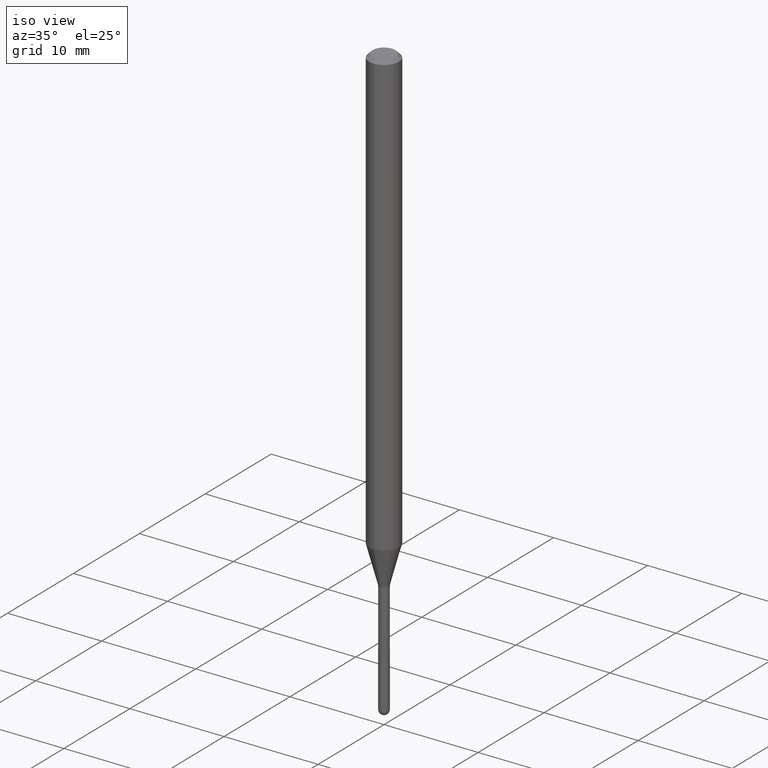
[diagram: clean part render]
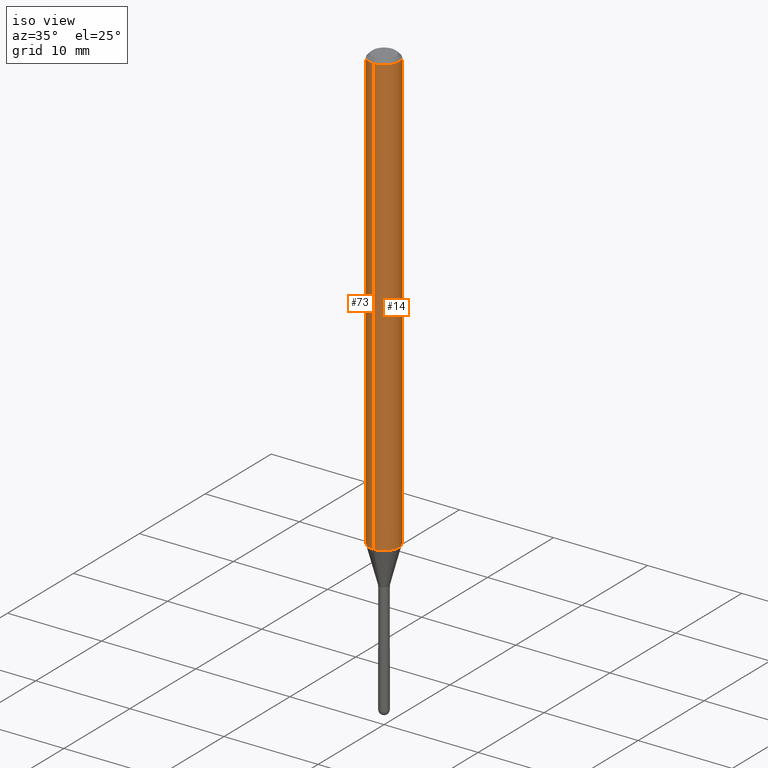
[diagram: same view with one multi-face feature highlighted, each face labeled with its STEP entity id]
A machine part, iso view. The highlighted faces form ONE feature: a constant-radius fillet chain: 2 tangent blend faces with common blend radius 1.5875 mm. The faces share edges in the B-rep.
Their STEP definitions:
[1] entity #14 (Cylinder):
#5 = DIRECTION ( 'NONE',  ( -2.445521062441042813E-29, 3.491406504910446446E-15, 1.000000000000000000 ) ) ;
#7 = DIRECTION ( 'NONE',  ( -6.982962677686265922E-15, -1.000000000000000000, 3.491406504910446446E-15 ) ) ;
#8 = CIRCLE ( 'NONE', #461, 0.06250000000000000000 ) ;
#14 = ADVANCED_FACE ( 'NONE', ( #347 ), #344, .T. ) ;
#37 = DIRECTION ( 'NONE',  ( -2.445521062441042813E-29, 3.491406504910446446E-15, 1.000000000000000000 ) ) ;
#47 = CARTESIAN_POINT ( 'NONE',  ( 3.668281593661566673E-31, -5.237109757365672602E-17, -0.01500000000000000812 ) ) ;
#60 = EDGE_CURVE ( 'NONE', #339, #284, #384, .T. ) ;
#79 = CARTESIAN_POINT ( 'NONE',  ( 4.440892098500625669E-16, 0.06250000000000000000, -2.182129065569029028E-16 ) ) ;
#93 = EDGE_CURVE ( 'NONE', #469, #468, #312, .T. ) ;
#97 = DIRECTION ( 'NONE',  ( -6.982962677686265922E-15, -1.000000000000000000, 3.483106191921935554E-15 ) ) ;
#139 = CARTESIAN_POINT ( 'NONE',  ( 4.527607959126081686E-29, -6.463947550056403649E-15, -1.851387840678323293 ) ) ;
#145 = DIRECTION ( 'NONE',  ( -6.982962677686265922E-15, -1.000000000000000000, 4.370956789862821150E-15 ) ) ;
#146 = ORIENTED_EDGE ( 'NONE', *, *, #509, .F. ) ;
#150 = VECTOR ( 'NONE', #5, 39.37007874015748143 ) ;
#214 = DIRECTION ( 'NONE',  ( -2.445521062441042813E-29, 3.491406504910446446E-15, 1.000000000000000000 ) ) ;
#219 = CIRCLE ( 'NONE', #269, 0.06250000000000000000 ) ;
#222 = DIRECTION ( 'NONE',  ( -2.445521062441042813E-29, 3.491406504910446446E-15, 1.000000000000000000 ) ) ;
#226 = EDGE_LOOP ( 'NONE', ( #302, #381, #146, #419 ) ) ;
#234 = DIRECTION ( 'NONE',  ( -2.445521062441042813E-29, 3.491406504910446446E-15, 1.000000000000000000 ) ) ;
#248 = CARTESIAN_POINT ( 'NONE',  ( 4.440892098501075812E-16, 0.06249999999999351907, -1.851387840678323737 ) ) ;
#258 = CARTESIAN_POINT ( 'NONE',  ( -4.364351673553912750E-16, -0.06250000000000005551, -0.01499999999999979128 ) ) ;
#269 = AXIS2_PLACEMENT_3D ( 'NONE', #139, #222, #145 ) ;
#284 = VERTEX_POINT ( 'NONE', #395 ) ;
#296 = AXIS2_PLACEMENT_3D ( 'NONE', #440, #234, #7 ) ;
#302 = ORIENTED_EDGE ( 'NONE', *, *, #433, .T. ) ;
#312 = LINE ( 'NONE', #355, #150 ) ;
#339 = VERTEX_POINT ( 'NONE', #248 ) ;
#344 = CYLINDRICAL_SURFACE ( 'NONE', #296, 0.06250000000000000000 ) ;
#347 = FACE_OUTER_BOUND ( 'NONE', #226, .T. ) ;
#355 = CARTESIAN_POINT ( 'NONE',  ( -4.364351673553916201E-16, -0.06250000000000000000, 2.182129065569029028E-16 ) ) ;
#367 = VECTOR ( 'NONE', #37, 39.37007874015748143 ) ;
#381 = ORIENTED_EDGE ( 'NONE', *, *, #60, .T. ) ;
#384 = LINE ( 'NONE', #79, #367 ) ;
#395 = CARTESIAN_POINT ( 'NONE',  ( 4.440892098501081729E-16, 0.06249999999999995143, -0.01500000000000022669 ) ) ;
#419 = ORIENTED_EDGE ( 'NONE', *, *, #93, .F. ) ;
#433 = EDGE_CURVE ( 'NONE', #469, #339, #219, .T. ) ;
#440 = CARTESIAN_POINT ( 'NONE',  ( 0.000000000000000000, 0.000000000000000000, 0.000000000000000000 ) ) ;
#461 = AXIS2_PLACEMENT_3D ( 'NONE', #47, #214, #97 ) ;
#468 = VERTEX_POINT ( 'NONE', #258 ) ;
#469 = VERTEX_POINT ( 'NONE', #492 ) ;
#492 = CARTESIAN_POINT ( 'NONE',  ( -4.364351673553464085E-16, -0.06250000000000648093, -1.851387840678323071 ) ) ;
#509 = EDGE_CURVE ( 'NONE', #468, #284, #8, .T. ) ;
[2] entity #73 (Cylinder):
#5 = DIRECTION ( 'NONE',  ( -2.445521062441042813E-29, 3.491406504910446446E-15, 1.000000000000000000 ) ) ;
#25 = EDGE_LOOP ( 'NONE', ( #69, #163, #152, #186 ) ) ;
#30 = CARTESIAN_POINT ( 'NONE',  ( 0.000000000000000000, 0.000000000000000000, 0.000000000000000000 ) ) ;
#37 = DIRECTION ( 'NONE',  ( -2.445521062441042813E-29, 3.491406504910446446E-15, 1.000000000000000000 ) ) ;
#51 = DIRECTION ( 'NONE',  ( -2.445521062441042813E-29, 3.491406504910446446E-15, 1.000000000000000000 ) ) ;
#60 = EDGE_CURVE ( 'NONE', #339, #284, #384, .T. ) ;
#69 = ORIENTED_EDGE ( 'NONE', *, *, #60, .F. ) ;
#73 = ADVANCED_FACE ( 'NONE', ( #74 ), #270, .T. ) ;
#74 = FACE_OUTER_BOUND ( 'NONE', #25, .T. ) ;
#79 = CARTESIAN_POINT ( 'NONE',  ( 4.440892098500625669E-16, 0.06250000000000000000, -2.182129065569029028E-16 ) ) ;
#93 = EDGE_CURVE ( 'NONE', #469, #468, #312, .T. ) ;
#103 = EDGE_CURVE ( 'NONE', #339, #469, #237, .T. ) ;
#137 = AXIS2_PLACEMENT_3D ( 'NONE', #206, #240, #345 ) ;
#150 = VECTOR ( 'NONE', #5, 39.37007874015748143 ) ;
#152 = ORIENTED_EDGE ( 'NONE', *, *, #93, .T. ) ;
#163 = ORIENTED_EDGE ( 'NONE', *, *, #103, .T. ) ;
#176 = DIRECTION ( 'NONE',  ( -6.982962677686265922E-15, -1.000000000000000000, 4.370956789862821150E-15 ) ) ;
#186 = ORIENTED_EDGE ( 'NONE', *, *, #285, .F. ) ;
#190 = CIRCLE ( 'NONE', #137, 0.06250000000000000000 ) ;
#206 = CARTESIAN_POINT ( 'NONE',  ( 3.668281593661566673E-31, -5.237109757365672602E-17, -0.01500000000000000812 ) ) ;
#237 = CIRCLE ( 'NONE', #334, 0.06250000000000000000 ) ;
#240 = DIRECTION ( 'NONE',  ( -2.445521062441042813E-29, 3.491406504910446446E-15, 1.000000000000000000 ) ) ;
#248 = CARTESIAN_POINT ( 'NONE',  ( 4.440892098501075812E-16, 0.06249999999999351907, -1.851387840678323737 ) ) ;
#258 = CARTESIAN_POINT ( 'NONE',  ( -4.364351673553912750E-16, -0.06250000000000005551, -0.01499999999999979128 ) ) ;
#270 = CYLINDRICAL_SURFACE ( 'NONE', #439, 0.06250000000000000000 ) ;
#284 = VERTEX_POINT ( 'NONE', #395 ) ;
#285 = EDGE_CURVE ( 'NONE', #284, #468, #190, .T. ) ;
#312 = LINE ( 'NONE', #355, #150 ) ;
#318 = DIRECTION ( 'NONE',  ( -6.982962677686265922E-15, -1.000000000000000000, 3.491406504910446446E-15 ) ) ;
#334 = AXIS2_PLACEMENT_3D ( 'NONE', #362, #51, #176 ) ;
#339 = VERTEX_POINT ( 'NONE', #248 ) ;
#345 = DIRECTION ( 'NONE',  ( -6.982962677686265922E-15, -1.000000000000000000, 3.483106191921935554E-15 ) ) ;
#355 = CARTESIAN_POINT ( 'NONE',  ( -4.364351673553916201E-16, -0.06250000000000000000, 2.182129065569029028E-16 ) ) ;
#362 = CARTESIAN_POINT ( 'NONE',  ( 4.527607959126081686E-29, -6.463947550056403649E-15, -1.851387840678323293 ) ) ;
#367 = VECTOR ( 'NONE', #37, 39.37007874015748143 ) ;
#384 = LINE ( 'NONE', #79, #367 ) ;
#395 = CARTESIAN_POINT ( 'NONE',  ( 4.440892098501081729E-16, 0.06249999999999995143, -0.01500000000000022669 ) ) ;
#439 = AXIS2_PLACEMENT_3D ( 'NONE', #30, #484, #318 ) ;
#468 = VERTEX_POINT ( 'NONE', #258 ) ;
#469 = VERTEX_POINT ( 'NONE', #492 ) ;
#484 = DIRECTION ( 'NONE',  ( -2.445521062441042813E-29, 3.491406504910446446E-15, 1.000000000000000000 ) ) ;
#492 = CARTESIAN_POINT ( 'NONE',  ( -4.364351673553464085E-16, -0.06250000000000648093, -1.851387840678323071 ) ) ;